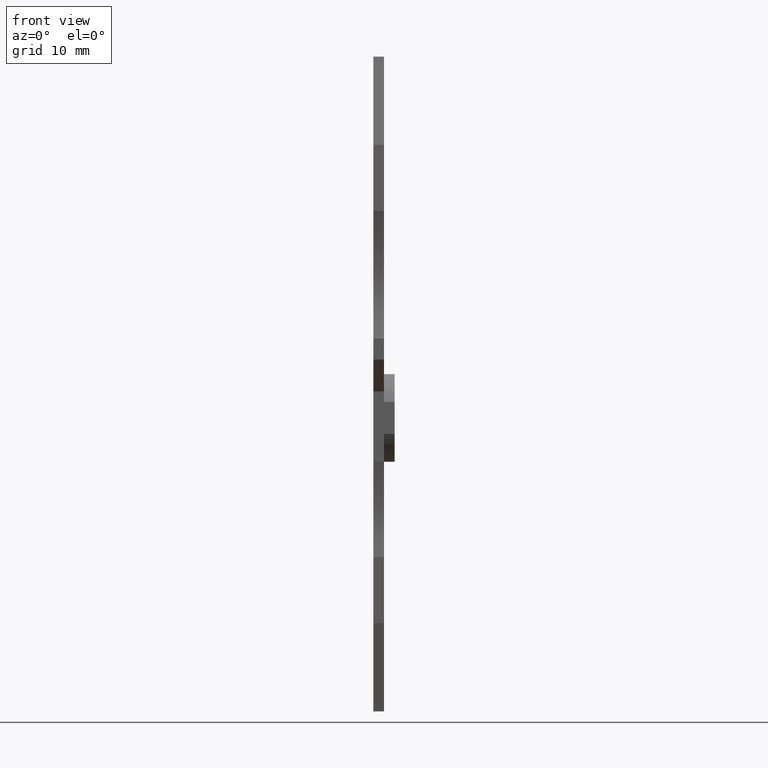
[diagram: clean part render]
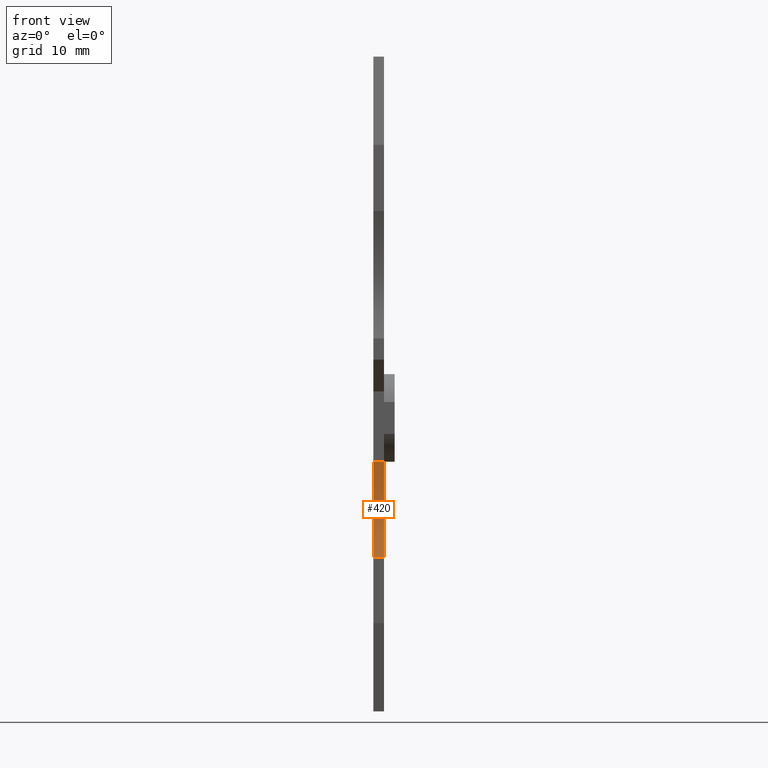
[diagram: same view with one face highlighted and labeled with its STEP entity id]
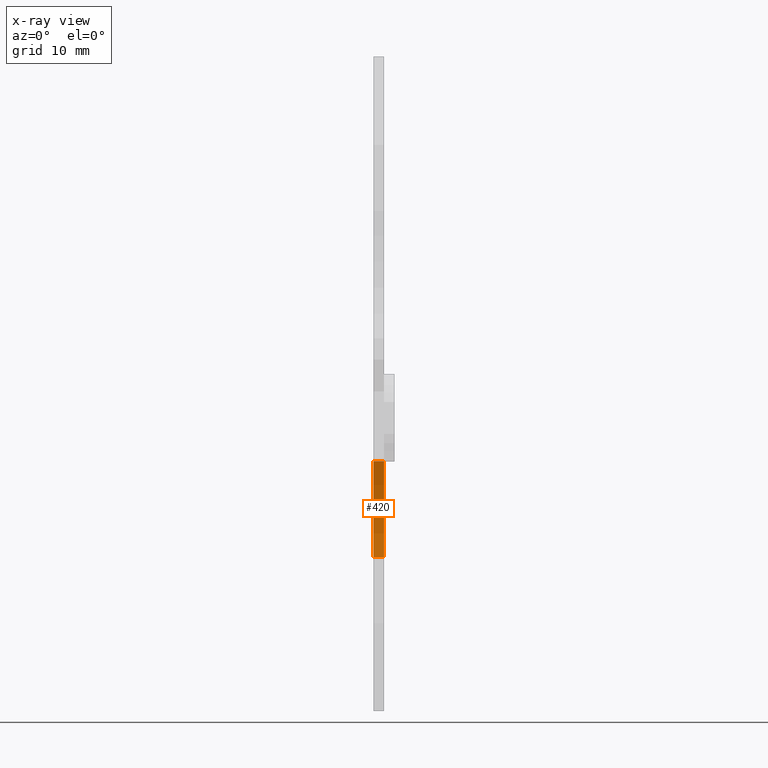
[diagram: x-ray of the same camera — body ghosted, the highlighted face saturated]
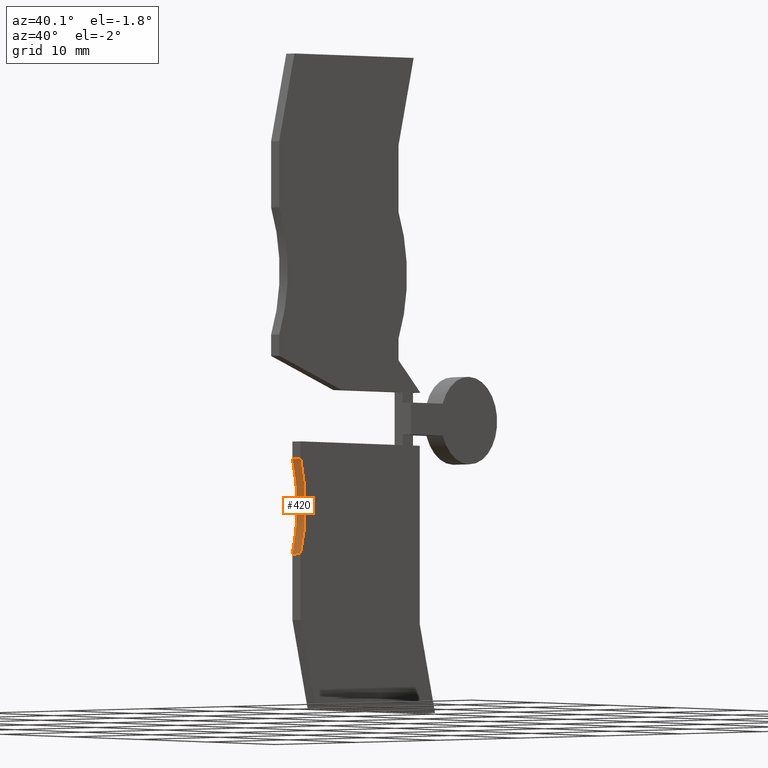
[diagram: same view with one face highlighted and labeled with its STEP entity id]
A machine part, front view. The second image highlights one B-rep face of the part: STEP entity #420.
The next image is the same camera in x-ray: the body ghosted, the highlighted face saturated — about 0% of this face is hidden behind the body in this view.
A second angle (auxiliary view) of the same face is appended — the face is thin or edge-on in the first view.
In plain terms, the highlighted cylindrical surface (partial cylindrical patch) has radius 15 mm, axis along (-1, 0, -0).
Its self-contained STEP definition (entity closure, byte-faithful):
#10=CARTESIAN_POINT('',(42.1016931115784,-23.9833568228416,
3.70000000003257));
#20=DIRECTION('',(0.,0.,1.));
#30=DIRECTION('',(-1.,1.22464679914735E-16,0.));
#40=AXIS2_PLACEMENT_3D('',#10,#20,#30);
#50=CYLINDRICAL_SURFACE('',#40,15.);
#60=CARTESIAN_POINT('',(27.7926050903251,-19.4833568228386,
3.70000000003257));
#70=DIRECTION('',(0.,0.,1.));
#80=VECTOR('',#70,1.);
#90=LINE('',#60,#80);
#100=CARTESIAN_POINT('',(27.7926050903251,-19.4833568228386,
3.70000000003257));
#110=VERTEX_POINT('',#100);
#120=CARTESIAN_POINT('',(27.7926050903251,-19.4833568228386,
4.70000000003257));
#130=VERTEX_POINT('',#120);
#140=EDGE_CURVE('',#110,#130,#90,.T.);
#150=ORIENTED_EDGE('',*,*,#140,.T.);
#160=CARTESIAN_POINT('',(42.1016931115784,-23.9833568228416,
3.70000000003257));
#170=DIRECTION('',(0.,0.,1.));
#180=DIRECTION('',(-1.,1.22464679914735E-16,0.));
#190=AXIS2_PLACEMENT_3D('',#160,#170,#180);
#200=CIRCLE('',#190,15.);
#210=CARTESIAN_POINT('',(27.7926050903252,-28.4833568228446,
3.70000000003257));
#220=VERTEX_POINT('',#210);
#230=EDGE_CURVE('',#110,#220,#200,.T.);
#240=ORIENTED_EDGE('',*,*,#230,.F.);
#250=CARTESIAN_POINT('',(27.7926050903252,-28.4833568228446,
3.70000000003257));
#260=DIRECTION('',(0.,0.,-1.));
#270=VECTOR('',#260,1.);
#280=LINE('',#250,#270);
#290=CARTESIAN_POINT('',(27.7926050903252,-28.4833568228446,
4.70000000003257));
#300=VERTEX_POINT('',#290);
#310=EDGE_CURVE('',#300,#220,#280,.T.);
#320=ORIENTED_EDGE('',*,*,#310,.T.);
#330=CARTESIAN_POINT('',(42.1016931115784,-23.9833568228416,
4.70000000003257));
#340=DIRECTION('',(0.,0.,1.));
#350=DIRECTION('',(-1.,1.22464679914735E-16,0.));
#360=AXIS2_PLACEMENT_3D('',#330,#340,#350);
#370=CIRCLE('',#360,15.);
#380=EDGE_CURVE('',#130,#300,#370,.T.);
#390=ORIENTED_EDGE('',*,*,#380,.T.);
#400=EDGE_LOOP('',(#390,#320,#240,#150));
#410=FACE_OUTER_BOUND('',#400,.T.);
#420=ADVANCED_FACE('',(#410),#50,.F.);